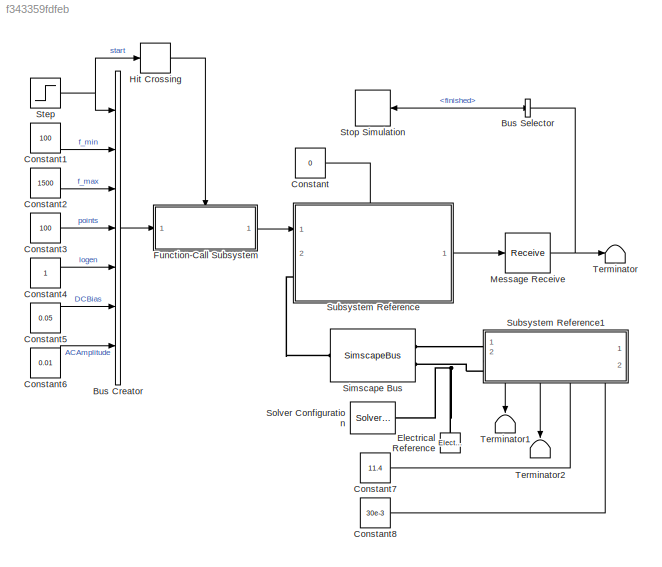
MODEL slx_f343359fdfeb
KIND model
CONFIG AbsTol = auto
CONFIG EnableMultiTasking = off
CONFIG FixedStep = auto
CONFIG MaxStep = 1e-4
CONFIG MinStep = auto
CONFIG RelTol = 1e-3
CONFIG SampleTimeConstraint = Unconstrained
CONFIG SolverName = VariableStepAuto
CONFIG StartTime = 0.0
CONFIG StopTime = Inf
BLOCK [BusCreator] Bus Creator
  DisplayOption = bar
  InheritFromInputs = off
  Inputs = 7
  NonVirtualBus = on
  OutDataTypeStr = Bus: EISCmd
  Ports = [7, 1]
BLOCK [BusSelector] Bus Selector
  OutputSignals = finished
  Ports = [1, 1]
BLOCK [Constant] Constant
  Value = 0
BLOCK [Constant] Constant1
  Value = 100
BLOCK [Constant] Constant2
  Value = 1500
BLOCK [Constant] Constant3
  Value = 100
BLOCK [Constant] Constant4
BLOCK [Constant] Constant5
  Value = 0.05
BLOCK [Constant] Constant6
  Value = 0.01
BLOCK [Constant] Constant7
  Value = 11.4
BLOCK [Constant] Constant8
  Value = 30e-3
BLOCK [Reference] Electrical Reference  REF=fl_lib/Electrical/Electrical Elements/Electrical Reference
  NameLocation = right
  Ports = [0, 0, 0, 0, 0, 1]
  SourceBlock = fl_lib/Electrical/Electrical Elements/Electrical Reference
  SourceProductBaseCode = PW,SS,VE
  SourceType = Electrical Reference
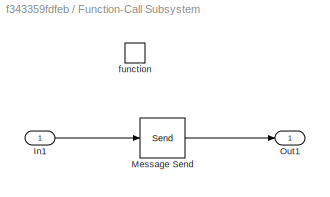
BLOCK [SubSystem] Function-Call Subsystem
  Ports = [1, 1, 0, 1]
  RequestExecContextInheritance = off
  TreatAsAtomicUnit = on
BLOCK [Inport] Function-Call Subsystem/In1
BLOCK [Send] Function-Call Subsystem/Message Send
  InputPortMap = u1
  OutputPortMessageModes = m
  Ports = [1, 1]
BLOCK [Outport] Function-Call Subsystem/Out1
BLOCK [TriggerPort] Function-Call Subsystem/function
  Ports = []
  StatesWhenEnabling = held
  TriggerType = function-call
  VariantControl = (inherit)
BLOCK [HitCross] Hit Crossing
  HitCrossingDirection = rising
  HitCrossingOffset = 0.01
  HitCrossingOutputType = Function-Call
  Ports = [1, 1]
BLOCK [Receive] Message Receive
  InputPortMap = u0
  InputPortMessageModes = m
  OutputPortMap = o1
  Ports = [1, 1]
  ValueSourceWhenQueueIsEmpty = Use initial value
BLOCK [SimscapeBus] Simscape Bus
  HierarchyStrings = Pos;Neg
  Ports = [0, 0, 0, 0, 0, 2, 1]
BLOCK [Reference] Solver Configuration  REF=nesl_utility/Solver
Configuration
  Ports = [0, 0, 0, 0, 0, 0, 1]
  SourceBlock = nesl_utility/Solver\nConfiguration
  SourceProductBaseCode = SS,PW,VE
  SourceType = Solver\nConfiguration
BLOCK [Step] Step
  SampleTime = 0
BLOCK [Stop] Stop Simulation
BLOCK [SubSystem] Subsystem Reference
  PortSchema = {"entries":[{"content":{"sides":[{"content":{"connectorIds":["In1","LConn1"]},"type":"ConnectorPlacement.EquallySpacedRectSide","uuid":"bda901de-5fc5-4df6-bed4-bf969933d972"},{"content":{"connectorIds":["Out1"],"side":"RIGHT"},"type":"ConnectorPlacement.EquallySpacedRectSide","uuid":"97e6e5df-6a68-4cb9-aa40-ad9555eae5d3"},{"content":{"connectorIds":["In2"],"side":"TOP"},"type":"ConnectorPlacement....<+254ch>
  Ports = [2, 1, 0, 0, 0, 1]
  ReferencedSubsystem = EIS
  RequestExecContextInheritance = off
BLOCK [SubSystem] Subsystem Reference1
  PortSchema = {"entries":[{"content":{"sides":[{"content":{"connectorIds":["LConn1","LConn2"]},"type":"ConnectorPlacement.EquallySpacedRectSide","uuid":"18f53ad7-56e7-49d9-b972-037d4274abd2"},{"content":{"connectorIds":[],"side":"RIGHT"},"type":"ConnectorPlacement.EquallySpacedRectSide","uuid":"c8641c6f-84a2-459f-b0c5-5f970ee05955"},{"content":{"connectorIds":[],"side":"TOP"},"type":"ConnectorPlacement.EquallyS...<+415ch>
  Ports = [2, 2, 0, 0, 0, 2]
  ReferencedSubsystem = Eletrical
  RequestExecContextInheritance = off
BLOCK [Terminator] Terminator
BLOCK [Terminator] Terminator1
  NameLocation = left
BLOCK [Terminator] Terminator2
  NameLocation = left
LINE Bus Creator:1 -> Function-Call Subsystem:1
LINE Bus Selector:1 -> Stop Simulation:1
LINE Constant1:1 -> Bus Creator:2
LINE Constant2:1 -> Bus Creator:3
LINE Constant3:1 -> Bus Creator:4
LINE Constant4:1 -> Bus Creator:5
LINE Constant5:1 -> Bus Creator:6
LINE Constant6:1 -> Bus Creator:7
LINE Constant7:1 -> Subsystem Reference1:2
LINE Constant8:1 -> Subsystem Reference1:1
LINE Constant:1 -> Subsystem Reference:2
LINE Function-Call Subsystem/In1:1 -> Function-Call Subsystem/Message Send:1
LINE Function-Call Subsystem/Message Send:1 -> Function-Call Subsystem/Out1:1
LINE Function-Call Subsystem:1 -> Subsystem Reference:1
LINE Hit Crossing:1 -> Function-Call Subsystem:trigger
NET Message Receive:1 -> Bus Selector:1, Terminator:1
NET Step:1 -> Bus Creator:1, Hit Crossing:1
LINE Subsystem Reference1:1 -> Terminator2:1
LINE Subsystem Reference1:2 -> Terminator1:1
LINE Subsystem Reference:1 -> Message Receive:1
PNET net1: Electrical Reference:LConn1 -- Simscape Bus:LConn2 -- Solver Configuration:RConn1 -- Subsystem Reference1:LConn2
PLINE Simscape Bus:LConn1 -- Subsystem Reference1:LConn1
PLINE Simscape Bus:RConn1 -- Subsystem Reference:LConn1
note: NET lines group one-source signal fan-out (src -> all destinations, sorted); 1:1 wires keep LINE; PNET lines group multi-terminal physical nets as a canonical sorted terminal list (undirected conserving connections); 2-terminal nets keep the pairwise PLINE form
